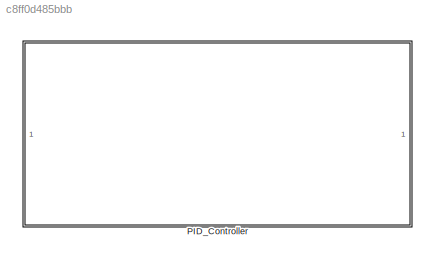
MODEL slx_c8ff0d485bbb
KIND model
CONFIG AbsTol = auto
CONFIG EnableMultiTasking = off
CONFIG FixedStep = auto
CONFIG MaxStep = auto
CONFIG MinStep = auto
CONFIG RelTol = 1e-3
CONFIG SampleTimeConstraint = Unconstrained
CONFIG SolverName = VariableStepAuto
CONFIG StartTime = 0.0
CONFIG StopTime = 10.0
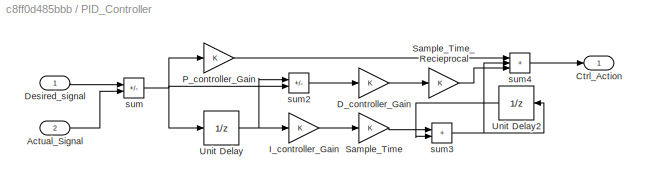
BLOCK [SubSystem] PID_Controller
BLOCK [Inport] PID_Controller/Actual_Signal
  Port = 2
BLOCK [Outport] PID_Controller/Ctrl_Action
BLOCK [Gain] PID_Controller/D_controller_Gain
BLOCK [Inport] PID_Controller/Desired_signal
BLOCK [Gain] PID_Controller/I_controller_Gain
BLOCK [Gain] PID_Controller/P_controller_Gain
BLOCK [Gain] PID_Controller/Sample_Time
BLOCK [Gain] PID_Controller/Sample_Time_Recieprocal
BLOCK [UnitDelay] PID_Controller/Unit Delay
  HasFrameUpgradeWarning = on
  SampleTime = -1
BLOCK [UnitDelay] PID_Controller/Unit Delay2
  HasFrameUpgradeWarning = on
  SampleTime = -1
BLOCK [Sum] PID_Controller/sum
  IconShape = rectangular
  Inputs = +-
BLOCK [Sum] PID_Controller/sum2
  IconShape = rectangular
  Inputs = -+
BLOCK [Sum] PID_Controller/sum3
  IconShape = rectangular
BLOCK [Sum] PID_Controller/sum4
  IconShape = rectangular
  Inputs = +++
LINE PID_Controller/Actual_Signal:1 -> PID_Controller/sum:2
LINE PID_Controller/D_controller_Gain:1 -> PID_Controller/Sample_Time_Recieprocal:1
LINE PID_Controller/Desired_signal:1 -> PID_Controller/sum:1
LINE PID_Controller/I_controller_Gain:1 -> PID_Controller/Sample_Time:1
LINE PID_Controller/P_controller_Gain:1 -> PID_Controller/sum4:1
LINE PID_Controller/Sample_Time:1 -> PID_Controller/sum3:1
LINE PID_Controller/Sample_Time_Recieprocal:1 -> PID_Controller/sum4:3
LINE PID_Controller/Unit Delay2:1 -> PID_Controller/sum3:2
NET PID_Controller/Unit Delay:1 -> PID_Controller/I_controller_Gain:1, PID_Controller/sum2:1
LINE PID_Controller/sum2:1 -> PID_Controller/D_controller_Gain:1
NET PID_Controller/sum3:1 -> PID_Controller/Unit Delay2:1, PID_Controller/sum4:2
LINE PID_Controller/sum4:1 -> PID_Controller/Ctrl_Action:1
NET PID_Controller/sum:1 -> PID_Controller/P_controller_Gain:1, PID_Controller/Unit Delay:1, PID_Controller/sum2:2
note: NET lines group one-source signal fan-out (src -> all destinations, sorted); 1:1 wires keep LINE
